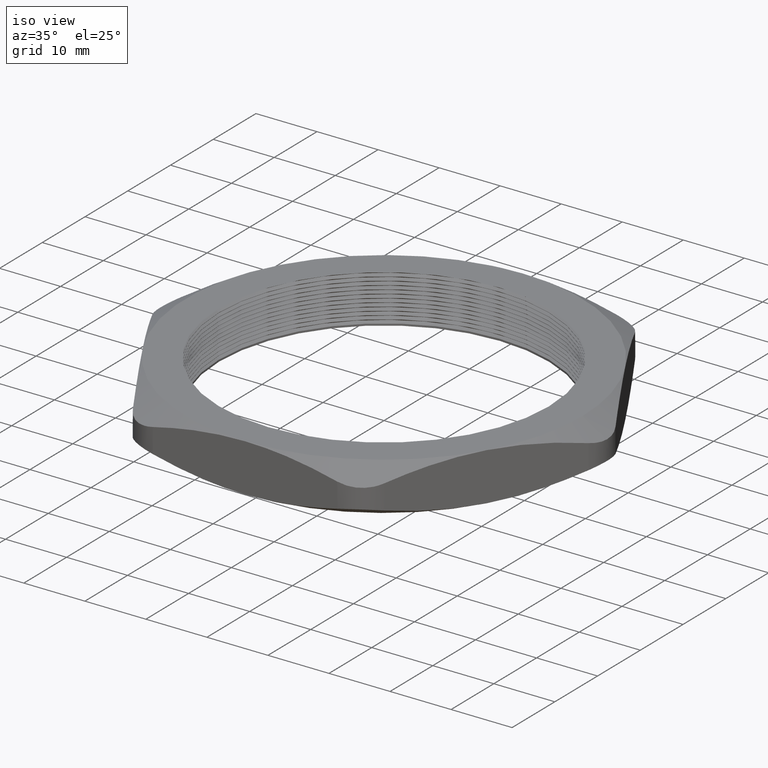
[diagram: clean part render]
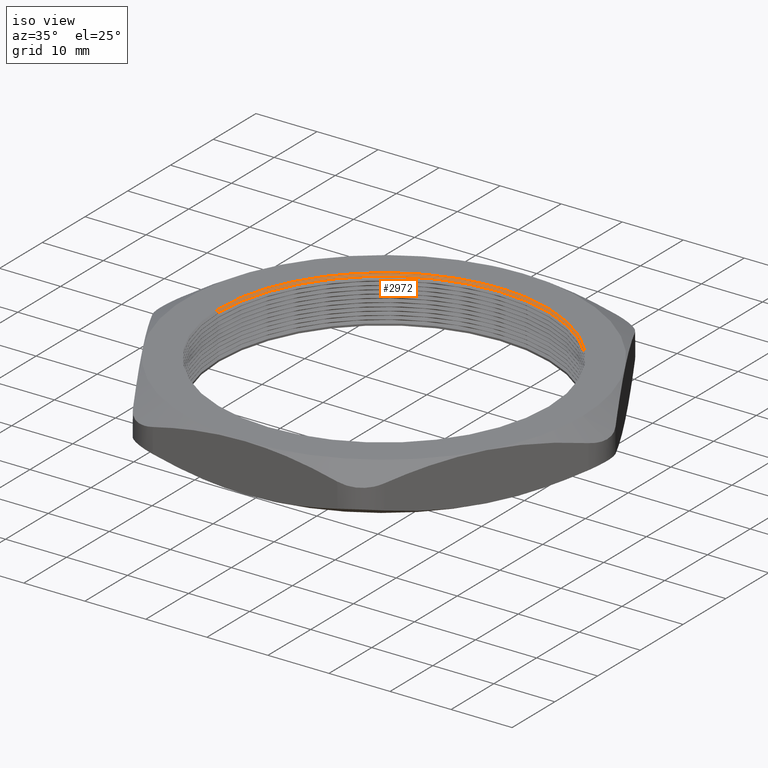
[diagram: same view with one face highlighted and labeled with its STEP entity id]
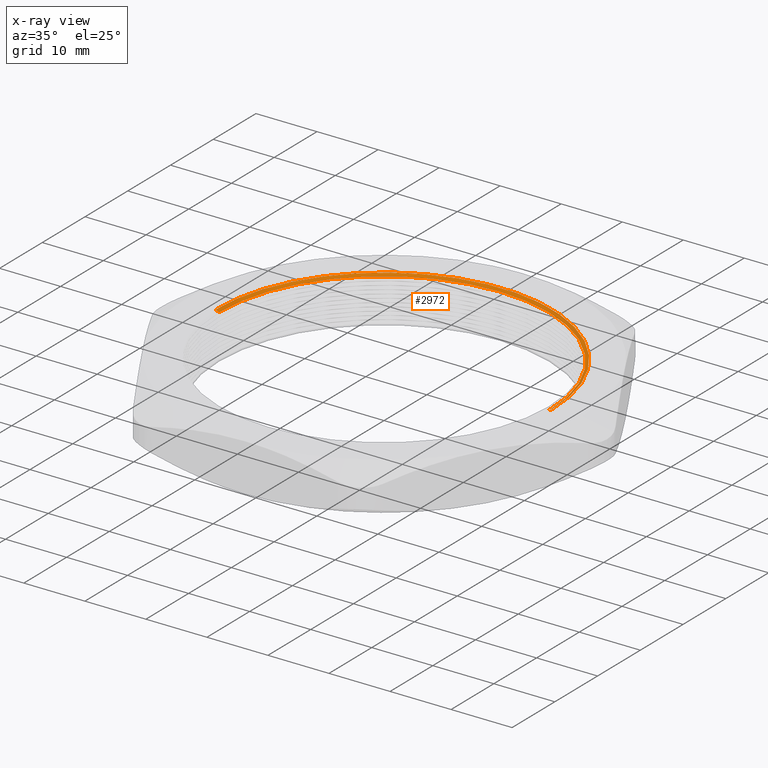
[diagram: x-ray of the same camera — body ghosted, the highlighted face saturated]
A machine part, iso view. The second image highlights one B-rep face of the part: STEP entity #2972.
The next image is the same camera in x-ray: the body ghosted, the highlighted face saturated — about 0% of this face is hidden behind the body in this view.
In plain terms, the highlighted conical surface has half-angle 60 deg.
Its self-contained STEP definition (entity closure, byte-faithful):
#506 = DIRECTION ( 'NONE',  ( 1.000000000000000000, 0.0000000000000000000, 0.0000000000000000000 ) ) ;
#507 = DIRECTION ( 'NONE',  ( 0.0000000000000000000, 0.0000000000000000000, 1.000000000000000000 ) ) ;
#508 = CARTESIAN_POINT ( 'NONE',  ( 0.0000000000000000000, 0.0000000000000000000, 0.2869059892324149500 ) ) ;
#509 = AXIS2_PLACEMENT_3D ( 'NONE', #508, #507, #506 ) ;
#514 = CIRCLE ( 'NONE', #509, 1.064999999999999900 ) ;
#1443 = DIRECTION ( 'NONE',  ( 1.000000000000000000, 0.0000000000000000000, 0.0000000000000000000 ) ) ;
#1444 = DIRECTION ( 'NONE',  ( 0.0000000000000000000, 0.0000000000000000000, 1.000000000000000000 ) ) ;
#1445 = CARTESIAN_POINT ( 'NONE',  ( 0.0000000000000000000, 0.0000000000000000000, 0.2984529946162076700 ) ) ;
#1446 = AXIS2_PLACEMENT_3D ( 'NONE', #1445, #1444, #1443 ) ;
#1447 = CIRCLE ( 'NONE', #1446, 1.085000000000000000 ) ;
#1547 = DIRECTION ( 'NONE',  ( 1.000000000000000000, 0.0000000000000000000, 0.0000000000000000000 ) ) ;
#1548 = DIRECTION ( 'NONE',  ( 0.0000000000000000000, 0.0000000000000000000, 1.000000000000000000 ) ) ;
#1549 = CARTESIAN_POINT ( 'NONE',  ( 0.0000000000000000000, 0.0000000000000000000, 0.2869059892324149500 ) ) ;
#1565 = AXIS2_PLACEMENT_3D ( 'NONE', #1549, #1548, #1547 ) ;
#1567 = CONICAL_SURFACE ( 'NONE', #1565, 1.064999999999999900, 1.047197551196592500 ) ;
#1568 = FACE_OUTER_BOUND ( 'NONE', #2962, .T. ) ;
#1661 = VERTEX_POINT ( 'NONE', #2880 ) ;
#1663 = EDGE_CURVE ( 'NONE', #1676, #1661, #2879, .T. ) ;
#1673 = VERTEX_POINT ( 'NONE', #2869 ) ;
#1676 = VERTEX_POINT ( 'NONE', #2859 ) ;
#1678 = EDGE_CURVE ( 'NONE', #1673, #1679, #2826, .T. ) ;
#1679 = VERTEX_POINT ( 'NONE', #2822 ) ;
#2068 = EDGE_CURVE ( 'NONE', #1676, #1673, #514, .T. ) ;
#2793 = ORIENTED_EDGE ( 'NONE', *, *, #2800, .T. ) ;
#2794 = ORIENTED_EDGE ( 'NONE', *, *, #1663, .T. ) ;
#2800 = EDGE_CURVE ( 'NONE', #1661, #1679, #1447, .T. ) ;
#2822 = CARTESIAN_POINT ( 'NONE',  ( -1.085000000000000000, 0.0000000000000000000, 0.2984529946162076700 ) ) ;
#2823 = DIRECTION ( 'NONE',  ( -0.8660254037844360400, 1.060575238724903700E-016, 0.5000000000000045500 ) ) ;
#2824 = VECTOR ( 'NONE', #2823, 39.37007874015748100 ) ;
#2825 = CARTESIAN_POINT ( 'NONE',  ( -1.064999999999999900, 1.304248841091931100E-016, 0.2869059892324149500 ) ) ;
#2826 = LINE ( 'NONE', #2825, #2824 ) ;
#2843 = ORIENTED_EDGE ( 'NONE', *, *, #2068, .F. ) ;
#2859 = CARTESIAN_POINT ( 'NONE',  ( 1.064999999999999900, 1.304248841091931100E-016, 0.2869059892324149500 ) ) ;
#2869 = CARTESIAN_POINT ( 'NONE',  ( -1.064999999999999900, 0.0000000000000000000, 0.2869059892324149500 ) ) ;
#2879 = LINE ( 'NONE', #2948, #2947 ) ;
#2880 = CARTESIAN_POINT ( 'NONE',  ( 1.085000000000000000, 1.328741777074878400E-016, 0.2984529946162076700 ) ) ;
#2903 = ORIENTED_EDGE ( 'NONE', *, *, #1678, .F. ) ;
#2946 = DIRECTION ( 'NONE',  ( 0.8660254037844360400, 0.0000000000000000000, 0.5000000000000045500 ) ) ;
#2947 = VECTOR ( 'NONE', #2946, 39.37007874015748100 ) ;
#2948 = CARTESIAN_POINT ( 'NONE',  ( 1.064999999999999900, 0.0000000000000000000, 0.2869059892324149500 ) ) ;
#2962 = EDGE_LOOP ( 'NONE', ( #2903, #2843, #2794, #2793 ) ) ;
#2972 = ADVANCED_FACE ( 'NONE', ( #1568 ), #1567, .F. ) ;